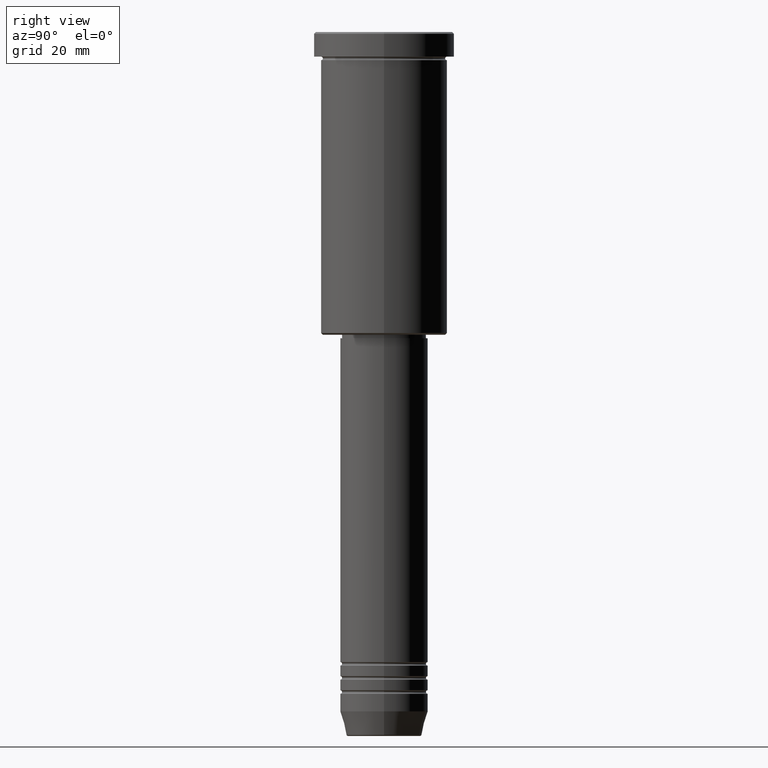
[diagram: clean part render]
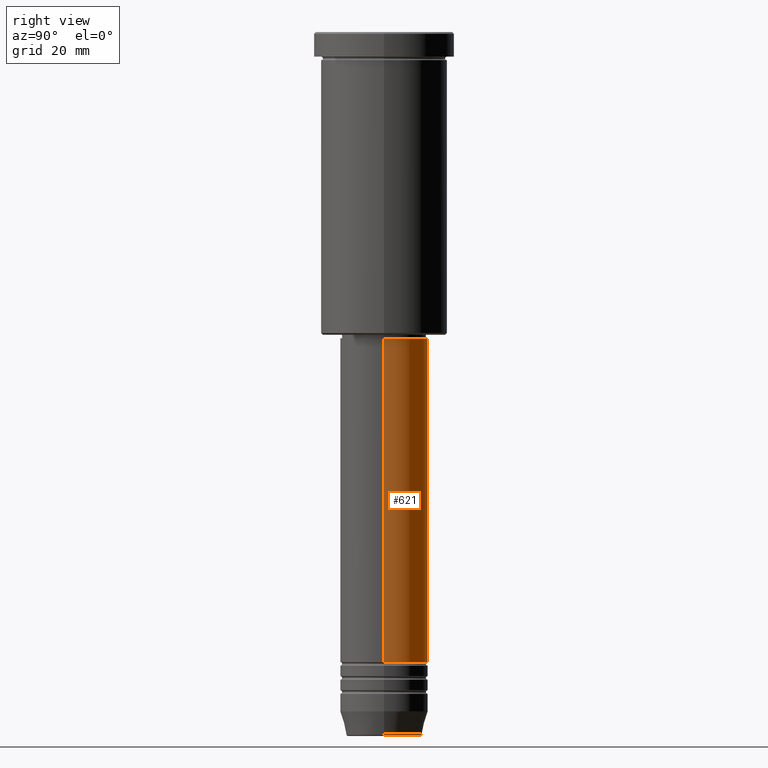
[diagram: same view with one face highlighted and labeled with its STEP entity id]
A machine part, right view. The second image highlights one B-rep face of the part: STEP entity #621.
In plain terms, the highlighted cylindrical surface (partial cylindrical patch) has radius 12.5 mm, axis along (-0, -0, 1).
Its self-contained STEP definition (entity closure, byte-faithful):
#25 = CARTESIAN_POINT ( 'NONE',  ( 0.000000000000000000, 0.000000000000000000, -87.00000000000002842 ) ) ;
#51 = ORIENTED_EDGE ( 'NONE', *, *, #239, .T. ) ;
#54 = EDGE_CURVE ( 'NONE', #946, #872, #898, .T. ) ;
#167 = CARTESIAN_POINT ( 'NONE',  ( 12.50000000000000000, 0.000000000000000000, -179.0000000000000284 ) ) ;
#179 = CARTESIAN_POINT ( 'NONE',  ( -12.50000000000000000, 1.530808498934191521E-15, -87.00000000000002842 ) ) ;
#239 = EDGE_CURVE ( 'NONE', #977, #487, #302, .T. ) ;
#302 = LINE ( 'NONE', #1019, #721 ) ;
#402 = DIRECTION ( 'NONE',  ( 1.000000000000000000, 0.000000000000000000, 0.000000000000000000 ) ) ;
#481 = EDGE_LOOP ( 'NONE', ( #715, #51, #767, #584 ) ) ;
#487 = VERTEX_POINT ( 'NONE', #179 ) ;
#504 = AXIS2_PLACEMENT_3D ( 'NONE', #25, #1118, #1108 ) ;
#512 = VECTOR ( 'NONE', #806, 1000.000000000000000 ) ;
#533 = CARTESIAN_POINT ( 'NONE',  ( 12.50000000000000000, 0.000000000000000000, -87.00000000000002842 ) ) ;
#584 = ORIENTED_EDGE ( 'NONE', *, *, #54, .F. ) ;
#606 = AXIS2_PLACEMENT_3D ( 'NONE', #1123, #1014, #402 ) ;
#621 = ADVANCED_FACE ( 'NONE', ( #1131 ), #938, .T. ) ;
#665 = DIRECTION ( 'NONE',  ( -0.000000000000000000, -0.000000000000000000, 1.000000000000000000 ) ) ;
#677 = CIRCLE ( 'NONE', #606, 12.50000000000000000 ) ;
#697 = CARTESIAN_POINT ( 'NONE',  ( -12.50000000000000000, 1.530808498934191521E-15, -179.0000000000000284 ) ) ;
#715 = ORIENTED_EDGE ( 'NONE', *, *, #1162, .T. ) ;
#721 = VECTOR ( 'NONE', #665, 1000.000000000000000 ) ;
#767 = ORIENTED_EDGE ( 'NONE', *, *, #1133, .F. ) ;
#806 = DIRECTION ( 'NONE',  ( -0.000000000000000000, -0.000000000000000000, 1.000000000000000000 ) ) ;
#827 = DIRECTION ( 'NONE',  ( 1.000000000000000000, 0.000000000000000000, 0.000000000000000000 ) ) ;
#860 = AXIS2_PLACEMENT_3D ( 'NONE', #1029, #1119, #827 ) ;
#872 = VERTEX_POINT ( 'NONE', #533 ) ;
#898 = LINE ( 'NONE', #1101, #512 ) ;
#938 = CYLINDRICAL_SURFACE ( 'NONE', #860, 12.50000000000000000 ) ;
#946 = VERTEX_POINT ( 'NONE', #167 ) ;
#955 = CIRCLE ( 'NONE', #504, 12.50000000000000000 ) ;
#977 = VERTEX_POINT ( 'NONE', #697 ) ;
#1014 = DIRECTION ( 'NONE',  ( -0.000000000000000000, -0.000000000000000000, 1.000000000000000000 ) ) ;
#1019 = CARTESIAN_POINT ( 'NONE',  ( -12.50000000000000000, 1.530808498934191521E-15, 0.000000000000000000 ) ) ;
#1029 = CARTESIAN_POINT ( 'NONE',  ( 0.000000000000000000, 0.000000000000000000, 0.000000000000000000 ) ) ;
#1101 = CARTESIAN_POINT ( 'NONE',  ( 12.50000000000000000, 0.000000000000000000, 0.000000000000000000 ) ) ;
#1108 = DIRECTION ( 'NONE',  ( 1.000000000000000000, 0.000000000000000000, 0.000000000000000000 ) ) ;
#1118 = DIRECTION ( 'NONE',  ( -0.000000000000000000, -0.000000000000000000, 1.000000000000000000 ) ) ;
#1119 = DIRECTION ( 'NONE',  ( -0.000000000000000000, -0.000000000000000000, 1.000000000000000000 ) ) ;
#1123 = CARTESIAN_POINT ( 'NONE',  ( 0.000000000000000000, 0.000000000000000000, -179.0000000000000284 ) ) ;
#1131 = FACE_OUTER_BOUND ( 'NONE', #481, .T. ) ;
#1133 = EDGE_CURVE ( 'NONE', #872, #487, #955, .T. ) ;
#1162 = EDGE_CURVE ( 'NONE', #946, #977, #677, .T. ) ;